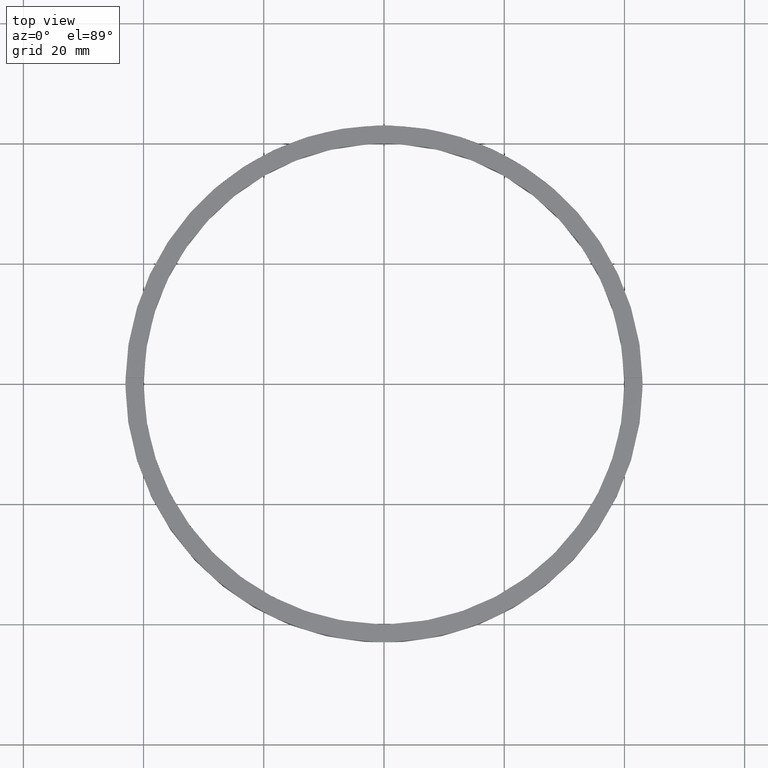
[diagram: clean part render]
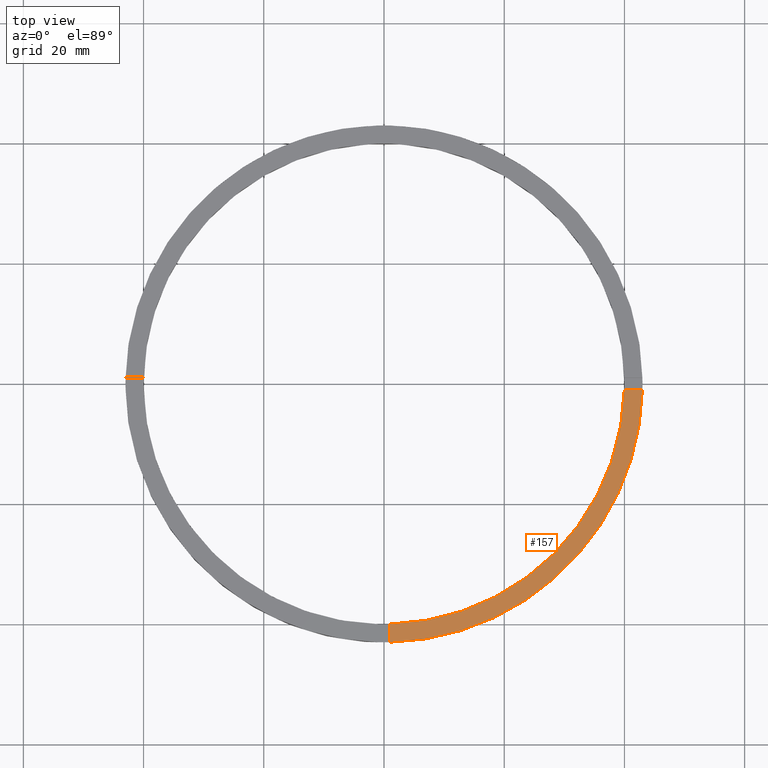
[diagram: same view with one face highlighted and labeled with its STEP entity id]
A machine part, top view. The second image highlights one B-rep face of the part: STEP entity #157.
In plain terms, the highlighted planar face has unit normal (0, 0, 1).
Its self-contained STEP definition (entity closure, byte-faithful):
#13 = ORIENTED_EDGE ( 'NONE', *, *, #269, .T. ) ;
#17 = AXIS2_PLACEMENT_3D ( 'NONE', #772, #464, #77 ) ;
#21 = CARTESIAN_POINT ( 'NONE',  ( 32.99999999999997158, -1.000000000000157208, 4.000000000000000000 ) ) ;
#39 = CIRCLE ( 'NONE', #17, 40.00000000000000000 ) ;
#53 = FACE_OUTER_BOUND ( 'NONE', #632, .T. ) ;
#55 = PLANE ( 'NONE',  #369 ) ;
#77 = DIRECTION ( 'NONE',  ( 1.000000000000000000, 0.000000000000000000, 0.000000000000000000 ) ) ;
#78 = EDGE_CURVE ( 'NONE', #246, #109, #601, .T. ) ;
#96 = ORIENTED_EDGE ( 'NONE', *, *, #617, .F. ) ;
#107 = CARTESIAN_POINT ( 'NONE',  ( 42.98837052040933315, -1.000000000000156541, 4.000000000000000000 ) ) ;
#109 = VERTEX_POINT ( 'NONE', #381 ) ;
#115 = DIRECTION ( 'NONE',  ( 0.000000000000000000, 0.000000000000000000, 1.000000000000000000 ) ) ;
#127 = DIRECTION ( 'NONE',  ( 1.000000000000000000, 0.000000000000000000, -0.000000000000000000 ) ) ;
#132 = AXIS2_PLACEMENT_3D ( 'NONE', #678, #763, #199 ) ;
#145 = DIRECTION ( 'NONE',  ( -1.301042606982605074E-16, 1.000000000000000000, -0.000000000000000000 ) ) ;
#150 = LINE ( 'NONE', #21, #480 ) ;
#157 = ADVANCED_FACE ( 'NONE', ( #53 ), #55, .T. ) ;
#176 = VERTEX_POINT ( 'NONE', #107 ) ;
#199 = DIRECTION ( 'NONE',  ( 1.000000000000000000, 0.000000000000000000, 0.000000000000000000 ) ) ;
#205 = ORIENTED_EDGE ( 'NONE', *, *, #671, .F. ) ;
#246 = VERTEX_POINT ( 'NONE', #602 ) ;
#269 = EDGE_CURVE ( 'NONE', #246, #176, #282, .T. ) ;
#282 = CIRCLE ( 'NONE', #132, 42.99999999999998579 ) ;
#334 = VECTOR ( 'NONE', #145, 1000.000000000000000 ) ;
#340 = DIRECTION ( 'NONE',  ( 1.000000000000000000, 6.505213034913025371E-17, 0.000000000000000000 ) ) ;
#352 = CARTESIAN_POINT ( 'NONE',  ( 0.9999999999998402389, -33.00000000000016342, 4.000000000000000000 ) ) ;
#369 = AXIS2_PLACEMENT_3D ( 'NONE', #684, #115, #127 ) ;
#381 = CARTESIAN_POINT ( 'NONE',  ( 0.9999999999998411271, -39.98749804626441318, 4.000000000000000000 ) ) ;
#464 = DIRECTION ( 'NONE',  ( 0.000000000000000000, 0.000000000000000000, 1.000000000000000000 ) ) ;
#480 = VECTOR ( 'NONE', #340, 1000.000000000000000 ) ;
#590 = VERTEX_POINT ( 'NONE', #612 ) ;
#601 = LINE ( 'NONE', #352, #334 ) ;
#602 = CARTESIAN_POINT ( 'NONE',  ( 0.9999999999998414602, -42.98837052040934026, 4.000000000000000000 ) ) ;
#612 = CARTESIAN_POINT ( 'NONE',  ( 39.98749804626440607, -1.000000000000156763, 4.000000000000000000 ) ) ;
#617 = EDGE_CURVE ( 'NONE', #109, #590, #39, .T. ) ;
#632 = EDGE_LOOP ( 'NONE', ( #205, #96, #730, #13 ) ) ;
#671 = EDGE_CURVE ( 'NONE', #590, #176, #150, .T. ) ;
#678 = CARTESIAN_POINT ( 'NONE',  ( 0.000000000000000000, 0.000000000000000000, 4.000000000000000000 ) ) ;
#684 = CARTESIAN_POINT ( 'NONE',  ( 0.000000000000000000, 0.000000000000000000, 4.000000000000000000 ) ) ;
#730 = ORIENTED_EDGE ( 'NONE', *, *, #78, .F. ) ;
#763 = DIRECTION ( 'NONE',  ( 0.000000000000000000, 0.000000000000000000, 1.000000000000000000 ) ) ;
#772 = CARTESIAN_POINT ( 'NONE',  ( 0.000000000000000000, 0.000000000000000000, 4.000000000000000000 ) ) ;